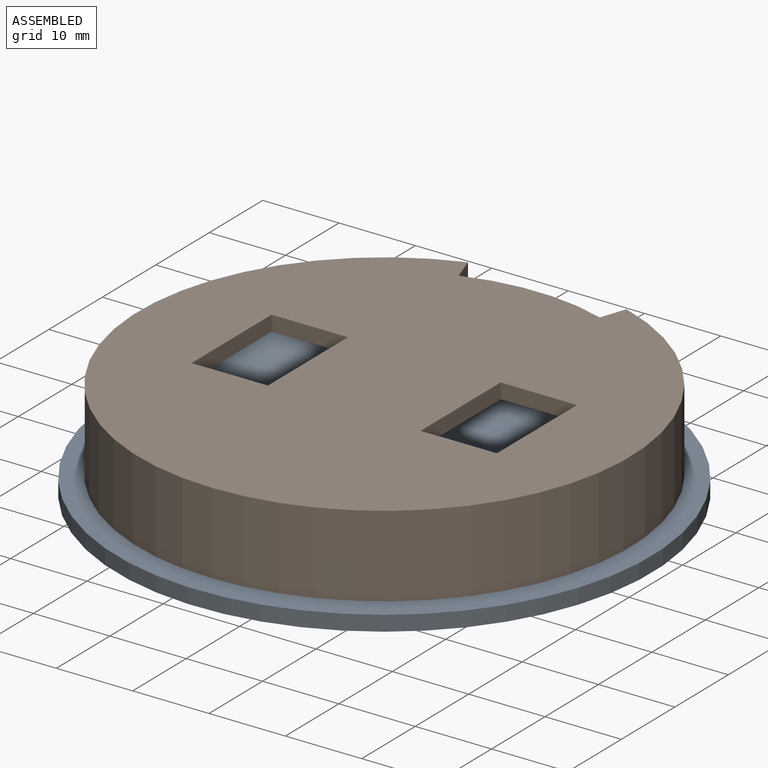
[diagram: assembled view]
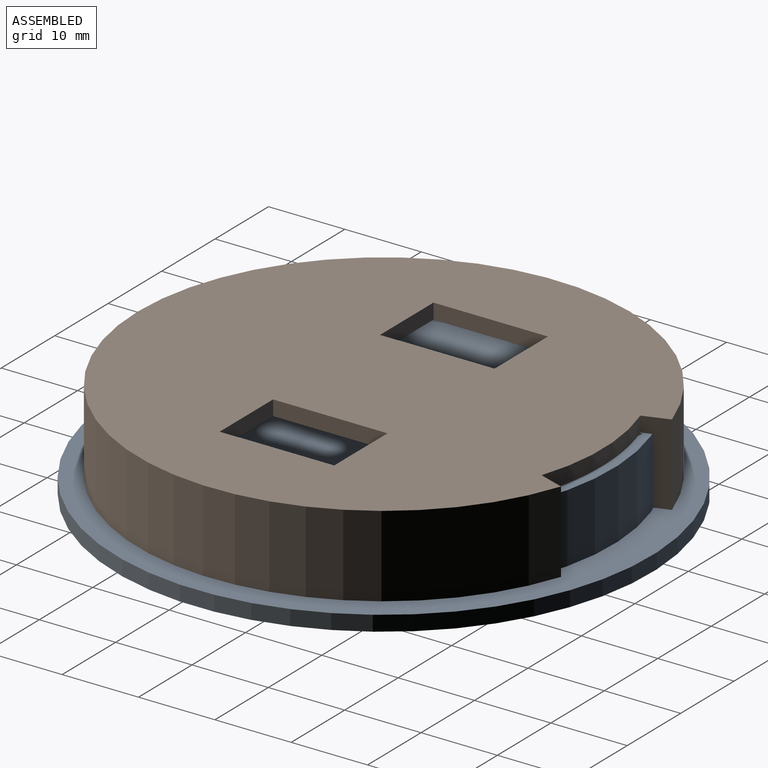
[diagram: assembled view, second angle]
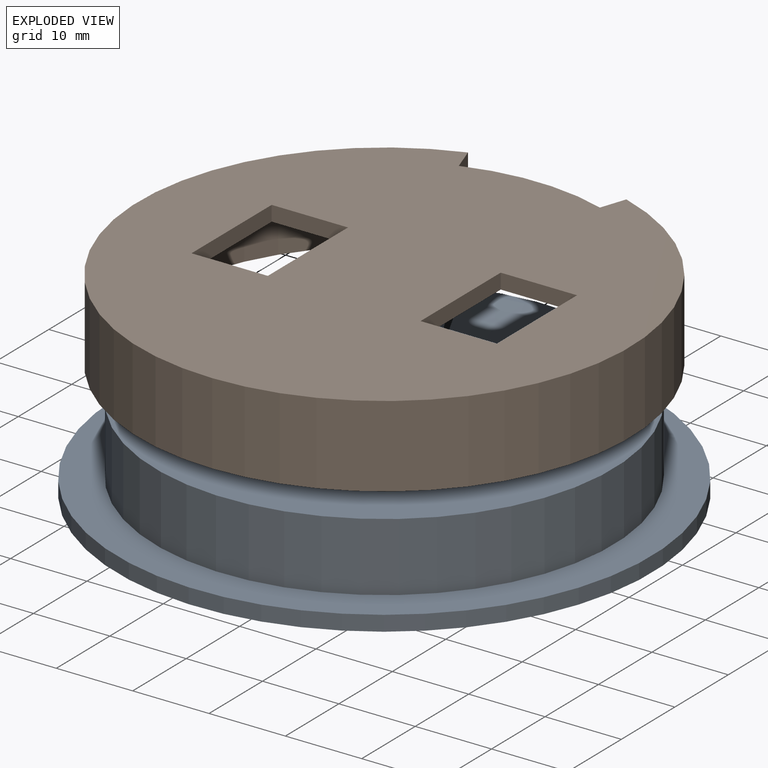
[diagram: exploded view]
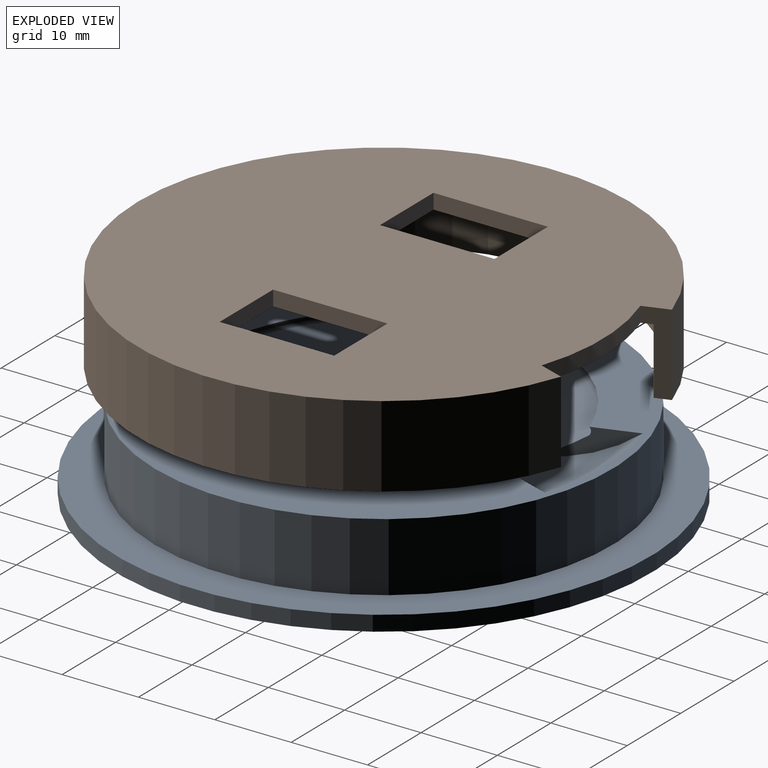
[diagram: exploded view, second angle]
ASSEMBLY  parts=2 mates=2
PART A: 10 faces, bbox 70x70x11 mm
  f0: sphere r=41.29mm, area 1729.8mm2, adj f1,f4,f5,f6
  f1: torus R=22.41mm, axis (0,0,-1), area 141.7mm2, adj f0,f3,f5,f6
  f2: cylinder r=30mm len=60mm, axis (0,0,-1), area 1696.5mm2, adj f3,f9
  f3: plane 60x60mm, normal (0,0,1), area 1064.8mm2, adj f1,f2,f4,f5,f6
  f4: torus R=16.25mm, axis (0,0,-1), area 191.1mm2, adj f0,f3,f5,f6
  f5: plane 11.15x4.23mm, normal (0.95,0.32,0), area 16.9mm2, adj f0,f1,f3,f4
  f6: plane 11.15x4.23mm, normal (-0.95,0.32,0), area 16.9mm2, adj f0,f1,f3,f4
  f7: cylinder r=35mm len=70mm, axis (0,0,1), area 439.8mm2, adj f8,f9
  f8: plane 70x70mm, normal (0,0,-1), area 3848.5mm2, adj f7
  f9: plane 70x70mm, normal (0,0,1), area 1021mm2, adj f2,f7
PART B: 21 faces, bbox 64.4x62.7x10.7 mm
  f0: sphere r=41.29mm, area 79.2mm2, adj f1,f2,f3,f4
  f1: torus R=16.22mm, axis (0,0,-1), area 175.9mm2, adj f0,f3,f4,f5
  f2: torus R=22.41mm, axis (0,0,-1), area 16mm2, adj f0,f3,f4,f5
  f3: plane 10.43x4.02mm, normal (-0.95,-0.31,0), area 14.6mm2, adj f0,f1,f2,f5
  f4: plane 10.43x4.02mm, normal (0.95,-0.31,0), area 14.6mm2, adj f0,f1,f2,f5
  f5: plane 60.3x58.82mm, normal (0,0,-1), area 2434.2mm2, adj f1,f2,f3,f4,f6,f10,f11,f12
  f6: cylinder r=30.15mm len=60.3mm, axis (0,0,1), area 1476mm2, adj f5,f7,f11,f12
  f7: plane 64.4x62.68mm, normal (0,0,-1), area 359.6mm2, adj f6,f9,f11,f12
  f8: plane 64.4x62.68mm, normal (0,0,1), area 2886.7mm2, adj f9,f10,f11,f12,f13,f14,f15,f16
  f9: cylinder r=32.2mm len=64.4mm, axis (0,0,-1), area 1938.7mm2, adj f7,f8,f11,f12
  f10: cylinder r=28.66mm len=18.48mm, axis (0,0,1), area 37.6mm2, adj f5,f8,f11,f12
  f11: plane 10.7x3.35mm, normal (-0.95,0.32,0), area 24.9mm2, adj f5,f6,f7,f8,f9,f10
  f12: plane 10.7x3.35mm, normal (0.95,0.32,0), area 24.9mm2, adj f5,f6,f7,f8,f9,f10
  f13: plane 15x2mm, normal (-1,0,0), area 30mm2, adj f5,f8,f14,f15
  f14: plane 10x2mm, normal (0,1,0), area 20mm2, adj f5,f8,f13,f16
  f15: plane 10x2mm, normal (0,-1,0), area 20mm2, adj f5,f8,f13,f16
  f16: plane 15x2mm, normal (1,0,0), area 30mm2, adj f5,f8,f14,f15
  f17: plane 15x2mm, normal (-1,0,0), area 30mm2, adj f5,f8,f18,f19
  f18: plane 10x2mm, normal (0,1,0), area 20mm2, adj f5,f8,f17,f20
  f19: plane 10x2mm, normal (0,-1,0), area 20mm2, adj f5,f8,f17,f20
  f20: plane 15x2mm, normal (1,0,0), area 30mm2, adj f5,f8,f18,f19
PLACE A t=(-4.73,-6.19,-6.44)mm
PLACE B t=(-4.73,-6.19,-6.44)mm
MATE parallel B.f5 <-> A.f3  axis (0,0,-1) through (4.23,21.04,2.56)mm
MATE slider B.f9 <-> A.f7  axis (0,0,1) through (-4.73,-6.19,4.56)mm
